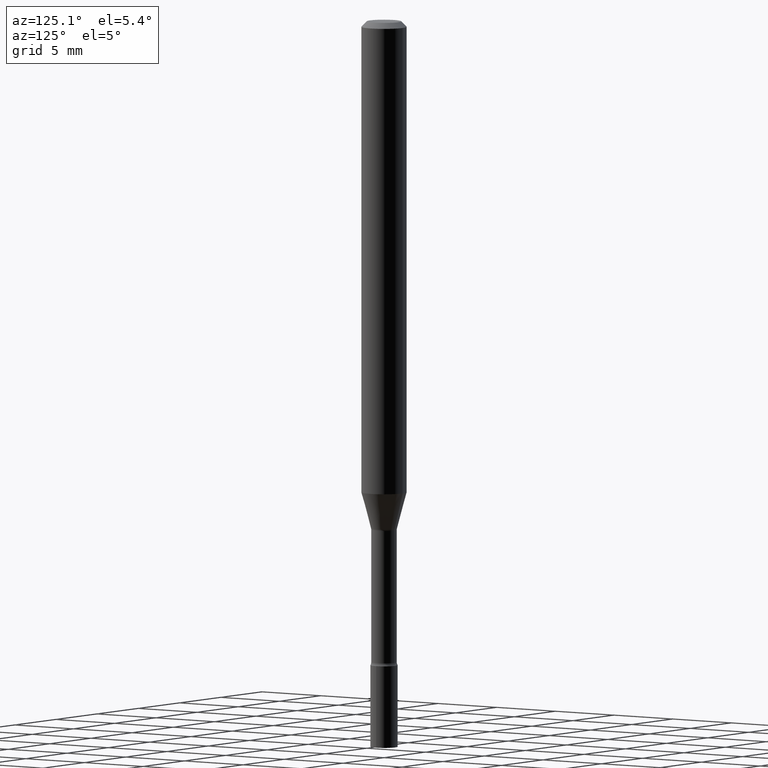
[diagram: clean part render]
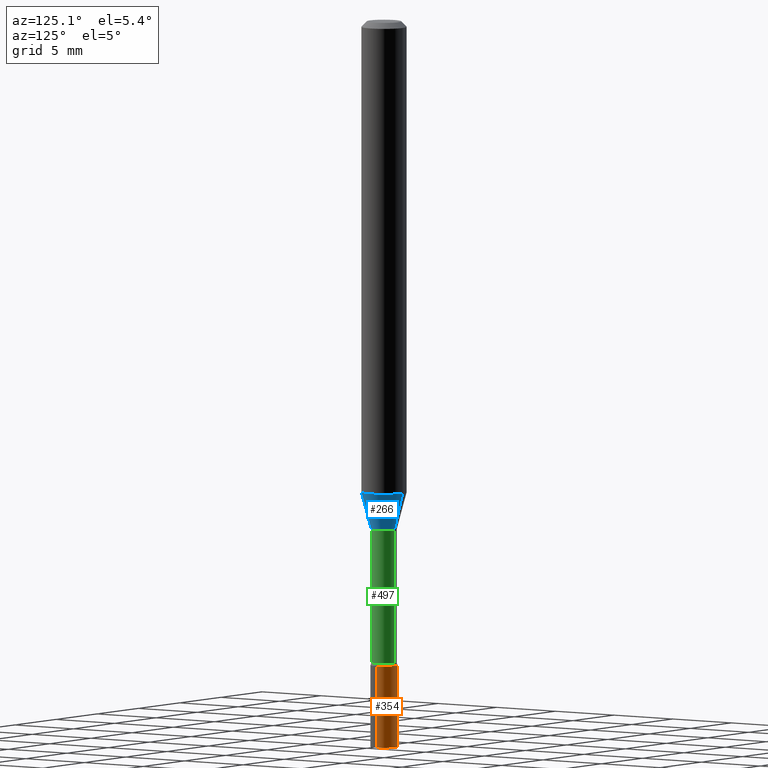
[diagram: same view with three faces highlighted in distinct colors, each labeled with its STEP entity id]
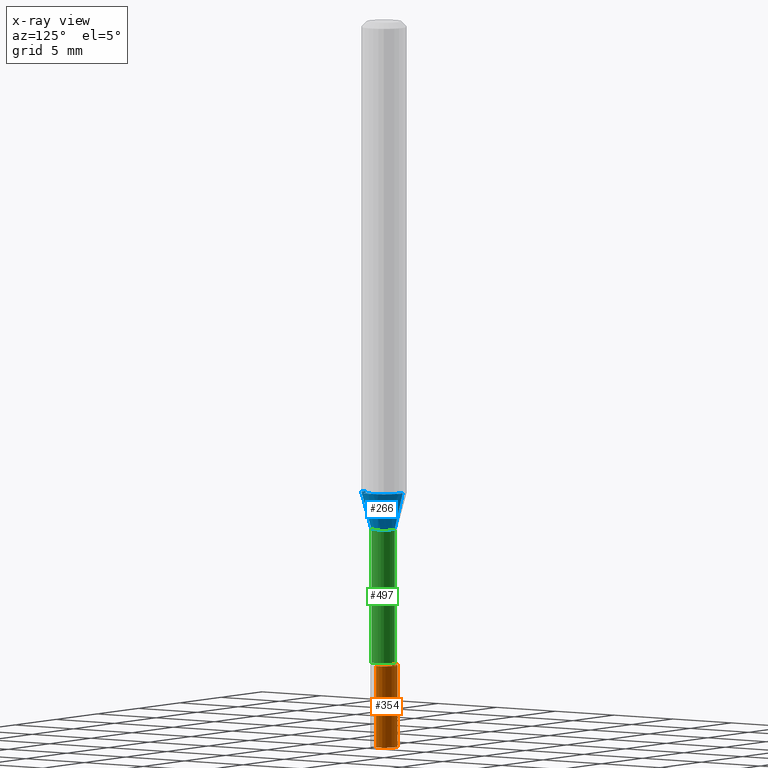
[diagram: x-ray of the same camera — body ghosted, the three highlighted faces saturated]
A machine part, auxiliary view with three faces highlighted in distinct colors.
The next image is the same camera in x-ray (body ghosted, the three faces saturated) — at least one of them is partly hidden behind the body in this view.
Their STEP definitions:

[orange] entity #354 — the highlighted cylindrical surface (edge-blend (fillet) strip) has radius 0.9525 mm, axis along (-0, 0, 1).
#33 = VECTOR ( 'NONE', #402, 39.37007874015748143 ) ;
#36 = CARTESIAN_POINT ( 'NONE',  ( -0.03749999999999999861, 2.664535259100375598E-16, -1.844600658845589458E-30 ) ) ;
#97 = ORIENTED_EDGE ( 'NONE', *, *, #191, .F. ) ;
#109 = CARTESIAN_POINT ( 'NONE',  ( -0.03749999999999999861, -6.323717501156401251E-15, -2.000000000000000000 ) ) ;
#127 = VERTEX_POINT ( 'NONE', #109 ) ;
#138 = DIRECTION ( 'NONE',  ( -2.445468806185136597E-29, 3.491481338843145583E-15, 1.000000000000000000 ) ) ;
#139 = DIRECTION ( 'NONE',  ( -2.445468806185136597E-29, 3.491481338843145583E-15, 1.000000000000000000 ) ) ;
#146 = ORIENTED_EDGE ( 'NONE', *, *, #161, .F. ) ;
#151 = CARTESIAN_POINT ( 'NONE',  ( 4.340707130978617347E-29, -6.197379376446583794E-15, -1.775000000000000133 ) ) ;
#161 = EDGE_CURVE ( 'NONE', #470, #363, #334, .T. ) ;
#173 = CIRCLE ( 'NONE', #259, 0.03749999999999999861 ) ;
#191 = EDGE_CURVE ( 'NONE', #363, #501, #232, .T. ) ;
#205 = CARTESIAN_POINT ( 'NONE',  ( 0.03749999999999999861, -6.459240476859818795E-15, -1.775000000000000133 ) ) ;
#232 = CIRCLE ( 'NONE', #265, 0.03749999999999999861 ) ;
#235 = DIRECTION ( 'NONE',  ( -2.445468806185136877E-29, 3.491481338843145188E-15, 1.000000000000000000 ) ) ;
#236 = EDGE_CURVE ( 'NONE', #127, #501, #520, .T. ) ;
#255 = CYLINDRICAL_SURFACE ( 'NONE', #438, 0.03749999999999999861 ) ;
#259 = AXIS2_PLACEMENT_3D ( 'NONE', #448, #138, #323 ) ;
#265 = AXIS2_PLACEMENT_3D ( 'NONE', #151, #139, #388 ) ;
#271 = CARTESIAN_POINT ( 'NONE',  ( 0.03749999999999999861, -7.244823778099525378E-15, -2.000000000000000000 ) ) ;
#283 = CARTESIAN_POINT ( 'NONE',  ( -0.03749999999999999861, -6.323717501156401251E-15, -1.775000000000000133 ) ) ;
#292 = DIRECTION ( 'NONE',  ( -2.445468806185136597E-29, 3.491481338843145583E-15, 1.000000000000000000 ) ) ;
#315 = CARTESIAN_POINT ( 'NONE',  ( 0.03749999999999999861, -2.618611004132350016E-16, 1.828566290923475922E-30 ) ) ;
#323 = DIRECTION ( 'NONE',  ( 1.000000000000000000, -6.982962677686268288E-15, 0.000000000000000000 ) ) ;
#334 = LINE ( 'NONE', #315, #33 ) ;
#340 = DIRECTION ( 'NONE',  ( 1.000000000000000000, -6.982962677686266711E-15, 4.876176775795935793E-29 ) ) ;
#354 = ADVANCED_FACE ( 'NONE', ( #492 ), #255, .T. ) ;
#363 = VERTEX_POINT ( 'NONE', #205 ) ;
#375 = EDGE_LOOP ( 'NONE', ( #453, #383, #97, #146 ) ) ;
#380 = EDGE_CURVE ( 'NONE', #470, #127, #173, .T. ) ;
#383 = ORIENTED_EDGE ( 'NONE', *, *, #236, .T. ) ;
#388 = DIRECTION ( 'NONE',  ( 1.000000000000000000, -6.982962677686268288E-15, 0.000000000000000000 ) ) ;
#402 = DIRECTION ( 'NONE',  ( -2.445468806185136877E-29, 3.491481338843145188E-15, 1.000000000000000000 ) ) ;
#430 = CARTESIAN_POINT ( 'NONE',  ( 0.000000000000000000, 0.000000000000000000, 0.000000000000000000 ) ) ;
#438 = AXIS2_PLACEMENT_3D ( 'NONE', #430, #292, #340 ) ;
#448 = CARTESIAN_POINT ( 'NONE',  ( 4.890937612370273194E-29, -6.982962677686291165E-15, -2.000000000000000000 ) ) ;
#453 = ORIENTED_EDGE ( 'NONE', *, *, #380, .T. ) ;
#470 = VERTEX_POINT ( 'NONE', #271 ) ;
#492 = FACE_OUTER_BOUND ( 'NONE', #375, .T. ) ;
#501 = VERTEX_POINT ( 'NONE', #283 ) ;
#509 = VECTOR ( 'NONE', #235, 39.37007874015748143 ) ;
#520 = LINE ( 'NONE', #36, #509 ) ;

[blue] entity #266 — the highlighted conical surface has half-angle 15 deg.
#6 = CARTESIAN_POINT ( 'NONE',  ( 2.540979878465689744E-16, 0.03576111260565909000, -1.398092501787273179 ) ) ;
#13 = CONICAL_SURFACE ( 'NONE', #248, 0.03576111260566397498, 0.2617993877991499629 ) ;
#16 = CARTESIAN_POINT ( 'NONE',  ( -2.497185146378532009E-16, -0.03576111260566885303, -1.398092501787273179 ) ) ;
#25 = DIRECTION ( 'NONE',  ( -2.445473795109733770E-29, 3.491474194419170341E-15, 1.000000000000000000 ) ) ;
#29 = ORIENTED_EDGE ( 'NONE', *, *, #77, .T. ) ;
#34 = VERTEX_POINT ( 'NONE', #287 ) ;
#54 = DIRECTION ( 'NONE',  ( 1.839019923739597949E-15, 0.2588190451025246253, 0.9659258262890670910 ) ) ;
#71 = AXIS2_PLACEMENT_3D ( 'NONE', #441, #193, #183 ) ;
#77 = EDGE_CURVE ( 'NONE', #34, #324, #252, .T. ) ;
#78 = AXIS2_PLACEMENT_3D ( 'NONE', #225, #25, #296 ) ;
#79 = DIRECTION ( 'NONE',  ( -2.445473795109733770E-29, 3.491474194419170341E-15, 1.000000000000000000 ) ) ;
#83 = CIRCLE ( 'NONE', #78, 0.03576111260566397498 ) ;
#121 = CARTESIAN_POINT ( 'NONE',  ( -4.364351673553600657E-16, -0.06250000000000456579, -1.298301615493748118 ) ) ;
#132 = EDGE_CURVE ( 'NONE', #432, #34, #83, .T. ) ;
#169 = ORIENTED_EDGE ( 'NONE', *, *, #303, .F. ) ;
#183 = DIRECTION ( 'NONE',  ( -6.982962677686265922E-15, -1.000000000000000000, 4.370956789862821150E-15 ) ) ;
#193 = DIRECTION ( 'NONE',  ( -2.445473795109733770E-29, 3.491474194419170341E-15, 1.000000000000000000 ) ) ;
#225 = CARTESIAN_POINT ( 'NONE',  ( 3.418998576260185238E-29, -4.881403891401201649E-15, -1.398092501787273179 ) ) ;
#245 = DIRECTION ( 'NONE',  ( -6.982962677686265133E-15, -1.000000000000000000, 0.000000000000000000 ) ) ;
#247 = CARTESIAN_POINT ( 'NONE',  ( 3.418998576260185238E-29, -4.881403891401201649E-15, -1.398092501787273179 ) ) ;
#248 = AXIS2_PLACEMENT_3D ( 'NONE', #247, #79, #245 ) ;
#252 = LINE ( 'NONE', #6, #308 ) ;
#266 = ADVANCED_FACE ( 'NONE', ( #281 ), #13, .T. ) ;
#273 = ORIENTED_EDGE ( 'NONE', *, *, #357, .F. ) ;
#281 = FACE_OUTER_BOUND ( 'NONE', #469, .T. ) ;
#287 = CARTESIAN_POINT ( 'NONE',  ( 3.490935988483317697E-16, 0.03576111260565909000, -1.398092501787273179 ) ) ;
#288 = DIRECTION ( 'NONE',  ( -1.807323732225328167E-15, -0.2588190451025179084, 0.9659258262890690894 ) ) ;
#296 = DIRECTION ( 'NONE',  ( -6.982962677686265133E-15, -1.000000000000000000, 0.000000000000000000 ) ) ;
#297 = CARTESIAN_POINT ( 'NONE',  ( -2.497185146378532009E-16, -0.03576111260566885303, -1.398092501787273179 ) ) ;
#303 = EDGE_CURVE ( 'NONE', #515, #324, #423, .T. ) ;
#308 = VECTOR ( 'NONE', #54, 39.37007874015748854 ) ;
#324 = VERTEX_POINT ( 'NONE', #467 ) ;
#357 = EDGE_CURVE ( 'NONE', #432, #515, #503, .T. ) ;
#368 = ORIENTED_EDGE ( 'NONE', *, *, #132, .T. ) ;
#423 = CIRCLE ( 'NONE', #71, 0.06250000000000000000 ) ;
#432 = VERTEX_POINT ( 'NONE', #297 ) ;
#441 = CARTESIAN_POINT ( 'NONE',  ( 3.174962578838594889E-29, -4.532986587069142857E-15, -1.298301615493748340 ) ) ;
#467 = CARTESIAN_POINT ( 'NONE',  ( 4.440892098500939734E-16, 0.06249999999999543421, -1.298301615493748562 ) ) ;
#469 = EDGE_LOOP ( 'NONE', ( #368, #29, #169, #273 ) ) ;
#479 = VECTOR ( 'NONE', #288, 39.37007874015748143 ) ;
#503 = LINE ( 'NONE', #16, #479 ) ;
#515 = VERTEX_POINT ( 'NONE', #121 ) ;

[green] entity #497 — the highlighted cylindrical surface (edge-blend (fillet) strip) has radius 0.8954 mm, axis along (-0, 0, 1).
#1 = VERTEX_POINT ( 'NONE', #246 ) ;
#30 = CYLINDRICAL_SURFACE ( 'NONE', #141, 0.03525000000000003825 ) ;
#43 = EDGE_CURVE ( 'NONE', #1, #64, #154, .T. ) ;
#47 = DIRECTION ( 'NONE',  ( -2.445473795109733770E-29, 3.491474194419170341E-15, 1.000000000000000000 ) ) ;
#48 = AXIS2_PLACEMENT_3D ( 'NONE', #175, #504, #301 ) ;
#64 = VERTEX_POINT ( 'NONE', #317 ) ;
#68 = VERTEX_POINT ( 'NONE', #480 ) ;
#74 = EDGE_CURVE ( 'NONE', #1, #68, #362, .T. ) ;
#102 = ORIENTED_EDGE ( 'NONE', *, *, #155, .T. ) ;
#129 = DIRECTION ( 'NONE',  ( -6.982962677686265133E-15, -1.000000000000000000, 3.491474194419169947E-15 ) ) ;
#136 = EDGE_CURVE ( 'NONE', #68, #372, #277, .T. ) ;
#141 = AXIS2_PLACEMENT_3D ( 'NONE', #179, #345, #129 ) ;
#154 = CIRCLE ( 'NONE', #233, 0.03525000000000008682 ) ;
#155 = EDGE_CURVE ( 'NONE', #64, #372, #341, .T. ) ;
#162 = DIRECTION ( 'NONE',  ( -2.445473795109734051E-29, 3.491474194419170735E-15, 1.000000000000000000 ) ) ;
#172 = ORIENTED_EDGE ( 'NONE', *, *, #136, .F. ) ;
#175 = CARTESIAN_POINT ( 'NONE',  ( 3.428492604147288661E-29, -4.894958791656197287E-15, -1.401974787463811101 ) ) ;
#176 = EDGE_LOOP ( 'NONE', ( #221, #102, #172, #498 ) ) ;
#179 = CARTESIAN_POINT ( 'NONE',  ( 0.000000000000000000, 0.000000000000000000, 0.000000000000000000 ) ) ;
#221 = ORIENTED_EDGE ( 'NONE', *, *, #43, .T. ) ;
#228 = FACE_OUTER_BOUND ( 'NONE', #176, .T. ) ;
#233 = AXIS2_PLACEMENT_3D ( 'NONE', #451, #47, #361 ) ;
#240 = CARTESIAN_POINT ( 'NONE',  ( 2.504663143554355380E-16, 0.03525000000000003825, -1.230744653532758807E-16 ) ) ;
#246 = CARTESIAN_POINT ( 'NONE',  ( -2.461494343883982794E-16, -0.03525000000000625550, -1.767098259685360384 ) ) ;
#254 = DIRECTION ( 'NONE',  ( -2.445473795109734051E-29, 3.491474194419170735E-15, 1.000000000000000000 ) ) ;
#277 = CIRCLE ( 'NONE', #48, 0.03524999999999998967 ) ;
#301 = DIRECTION ( 'NONE',  ( -6.982962677686266711E-15, -1.000000000000000000, 0.000000000000000000 ) ) ;
#317 = CARTESIAN_POINT ( 'NONE',  ( 2.584599201327800595E-16, 0.03524999999999392508, -1.767098259685360384 ) ) ;
#341 = LINE ( 'NONE', #240, #457 ) ;
#345 = DIRECTION ( 'NONE',  ( -2.445473795109733770E-29, 3.491474194419170341E-15, 1.000000000000000000 ) ) ;
#361 = DIRECTION ( 'NONE',  ( -6.982962677686266711E-15, -1.000000000000000000, 0.000000000000000000 ) ) ;
#362 = LINE ( 'NONE', #416, #488 ) ;
#372 = VERTEX_POINT ( 'NONE', #485 ) ;
#416 = CARTESIAN_POINT ( 'NONE',  ( -2.461494343884411244E-16, -0.03525000000000003825, 1.230744653532758807E-16 ) ) ;
#451 = CARTESIAN_POINT ( 'NONE',  ( 4.321392487444564369E-29, -6.169777972694461128E-15, -1.767098259685360384 ) ) ;
#457 = VECTOR ( 'NONE', #162, 39.37007874015748143 ) ;
#480 = CARTESIAN_POINT ( 'NONE',  ( -2.461494343884065131E-16, -0.03525000000000488853, -1.401974787463811101 ) ) ;
#485 = CARTESIAN_POINT ( 'NONE',  ( 2.504663143554786788E-16, 0.03524999999999509775, -1.401974787463811101 ) ) ;
#488 = VECTOR ( 'NONE', #254, 39.37007874015748143 ) ;
#497 = ADVANCED_FACE ( 'NONE', ( #228 ), #30, .T. ) ;
#498 = ORIENTED_EDGE ( 'NONE', *, *, #74, .F. ) ;
#504 = DIRECTION ( 'NONE',  ( -2.445473795109733770E-29, 3.491474194419170341E-15, 1.000000000000000000 ) ) ;